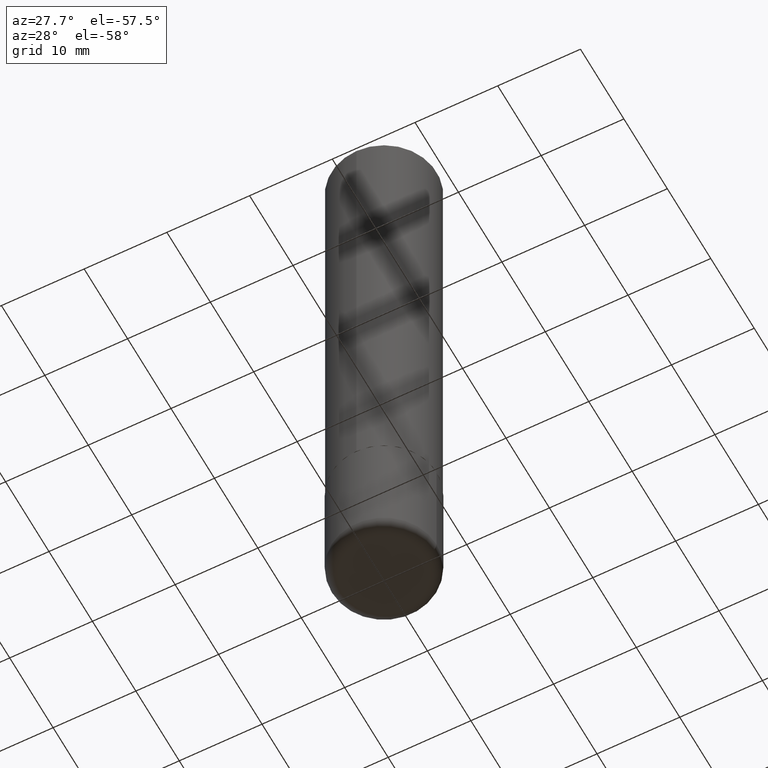
[diagram: clean part render]
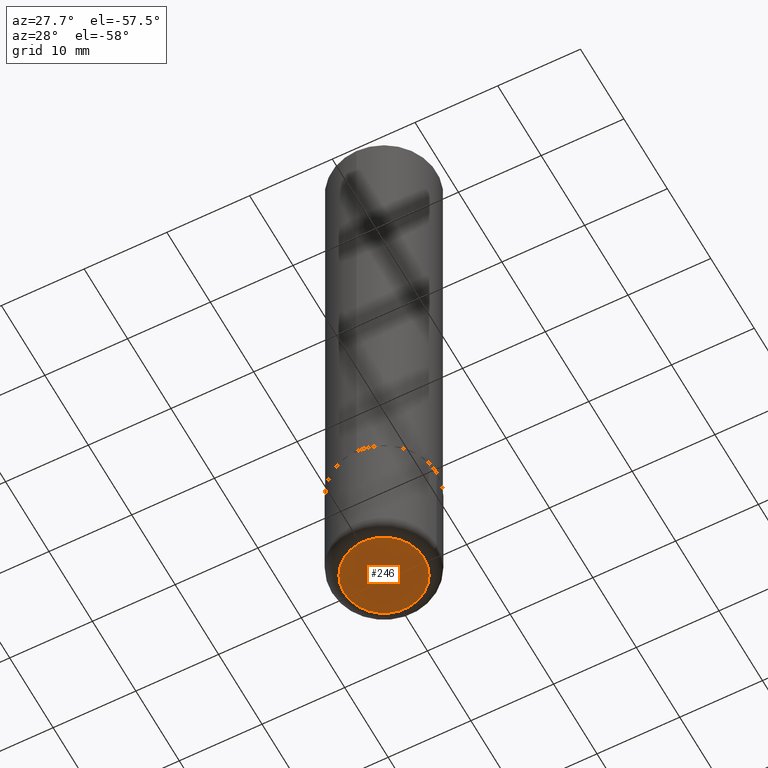
[diagram: same view with one face highlighted and labeled with its STEP entity id]
A machine part, auxiliary view. The second image highlights one B-rep face of the part: STEP entity #246.
In plain terms, the highlighted planar face has unit normal (0, -0, -1).
Its self-contained STEP definition (entity closure, byte-faithful):
#9 = DIRECTION ( 'NONE',  ( -2.445468806185136597E-29, 3.491481338843145583E-15, 1.000000000000000000 ) ) ;
#32 = CARTESIAN_POINT ( 'NONE',  ( 7.336406418555409790E-29, -1.047444401652943635E-14, -3.000000000000000444 ) ) ;
#38 = VERTEX_POINT ( 'NONE', #150 ) ;
#39 = CARTESIAN_POINT ( 'NONE',  ( 7.336406418555409790E-29, -1.047444401652943635E-14, -3.000000000000000444 ) ) ;
#43 = DIRECTION ( 'NONE',  ( 2.438088387897960049E-29, -3.491481338843145188E-15, -1.000000000000000000 ) ) ;
#85 = EDGE_CURVE ( 'NONE', #268, #38, #148, .T. ) ;
#86 = CIRCLE ( 'NONE', #188, 0.1899999999999999745 ) ;
#105 = CARTESIAN_POINT ( 'NONE',  ( 7.336406418555409790E-29, -1.047444401652943635E-14, -3.000000000000000444 ) ) ;
#129 = DIRECTION ( 'NONE',  ( -2.445468806185136597E-29, 3.491481338843145583E-15, 1.000000000000000000 ) ) ;
#148 = CIRCLE ( 'NONE', #354, 0.1899999999999999745 ) ;
#150 = CARTESIAN_POINT ( 'NONE',  ( -0.1899999999999999745, -8.806505557691924342E-15, -3.000000000000000444 ) ) ;
#171 = CARTESIAN_POINT ( 'NONE',  ( 0.1899999999999999745, -1.180120692528982640E-14, -3.000000000000000444 ) ) ;
#188 = AXIS2_PLACEMENT_3D ( 'NONE', #105, #9, #242 ) ;
#193 = EDGE_CURVE ( 'NONE', #38, #268, #86, .T. ) ;
#215 = ORIENTED_EDGE ( 'NONE', *, *, #193, .F. ) ;
#232 = ORIENTED_EDGE ( 'NONE', *, *, #85, .F. ) ;
#242 = DIRECTION ( 'NONE',  ( 1.000000000000000000, -6.982962677686261977E-15, 0.000000000000000000 ) ) ;
#246 = ADVANCED_FACE ( 'NONE', ( #336 ), #299, .T. ) ;
#268 = VERTEX_POINT ( 'NONE', #171 ) ;
#296 = AXIS2_PLACEMENT_3D ( 'NONE', #39, #43, #372 ) ;
#299 = PLANE ( 'NONE',  #296 ) ;
#336 = FACE_OUTER_BOUND ( 'NONE', #370, .T. ) ;
#354 = AXIS2_PLACEMENT_3D ( 'NONE', #32, #129, #361 ) ;
#361 = DIRECTION ( 'NONE',  ( 1.000000000000000000, -6.982962677686261977E-15, 0.000000000000000000 ) ) ;
#370 = EDGE_LOOP ( 'NONE', ( #232, #215 ) ) ;
#372 = DIRECTION ( 'NONE',  ( -1.000000000000000000, 6.982962677686265922E-15, -4.876176775795935793E-29 ) ) ;